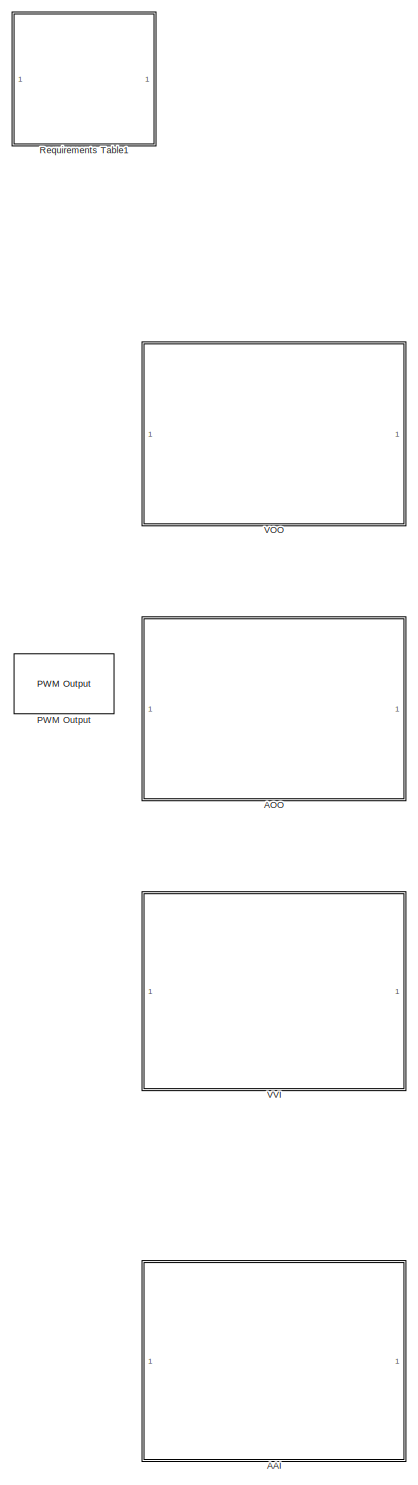
[diagram: root canvas - part 1/4, left side, full height]
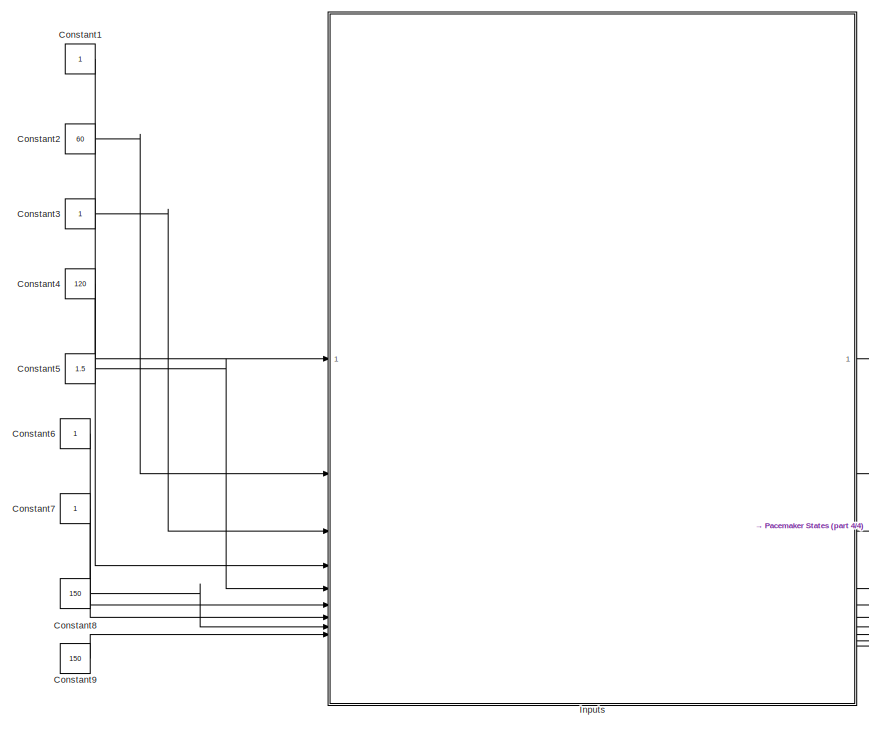
[diagram: root canvas - part 2/4, middle left region]
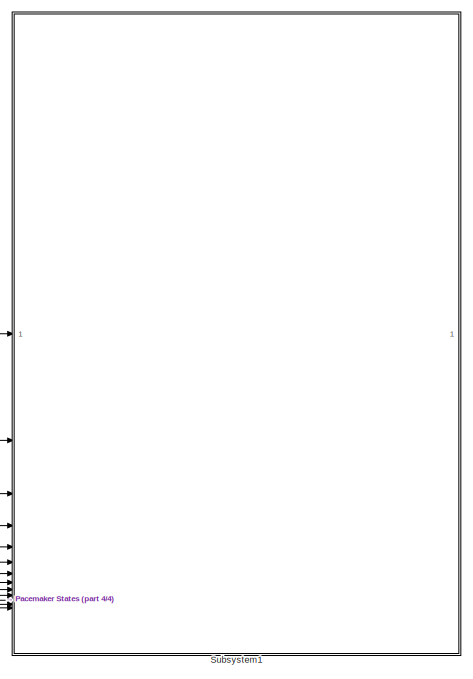
[diagram: root canvas - part 3/4, middle right region]
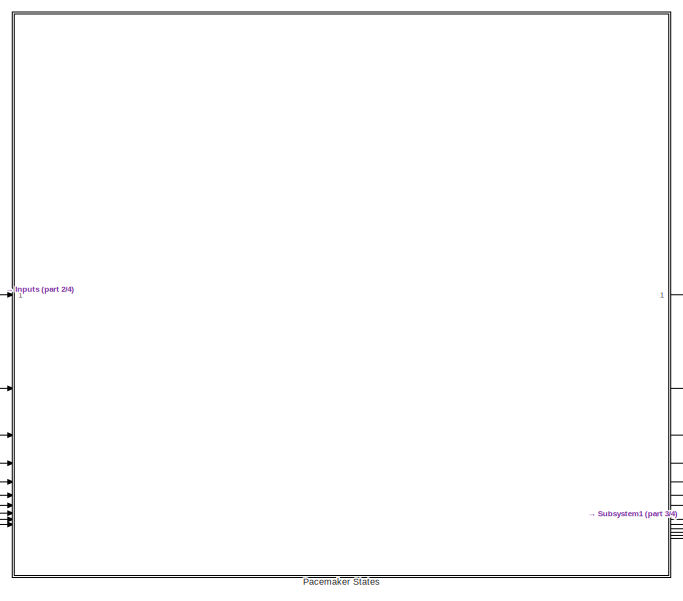
[diagram: root canvas - part 4/4, central region]
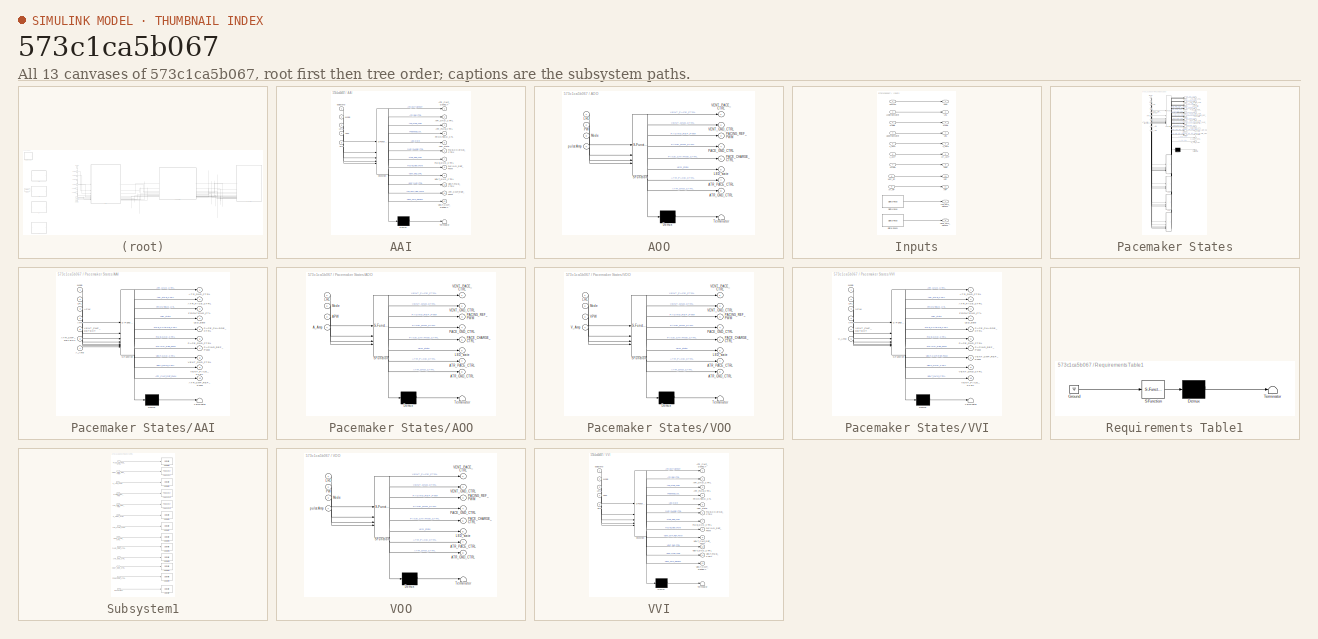
[diagram: thumbnail index - all 13 canvases of the model, root first then tree order]
MODEL slx_573c1ca5b067
KIND model
CONFIG AbsTol = auto
CONFIG EnableMultiTasking = on
CONFIG FixedStep = 1e-3
CONFIG MaxStep = auto
CONFIG MinStep = auto
CONFIG RelTol = 1e-3
CONFIG SampleTimeConstraint = Unconstrained
CONFIG SolverName = FixedStepAuto
CONFIG StartTime = 0.0
CONFIG StopTime = 10.0
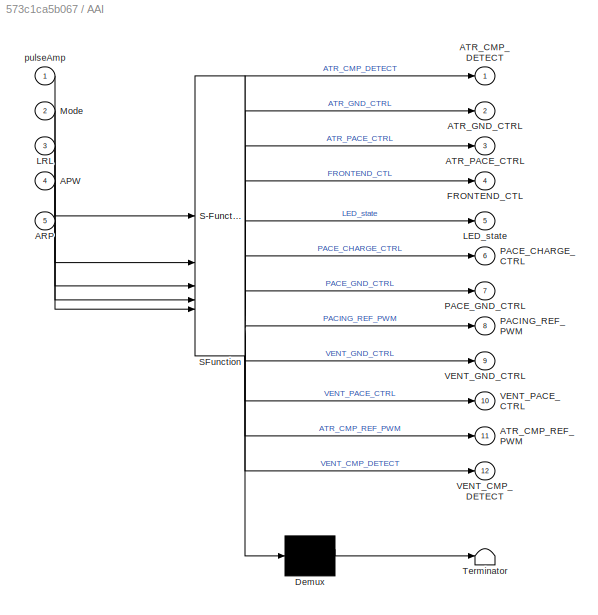
BLOCK [SubSystem] AAI
  ErrorFcn = Stateflow.Translate.translate
  PermitHierarchicalResolution = ExplicitOnly
  SFBlockType = Chart
  TreatAsAtomicUnit = on
BLOCK [Demux] AAI/ Demux 
  Outputs = 1
BLOCK [S-Function] AAI/ SFunction 
  EnableBusSupport = off
  FunctionName = sf_sfun
  PortCounts = [5 13]
  SFcnIsStateOwnerBlock = off
  SFunctionDeploymentMode = off
  Tag = Stateflow S-Function 5
BLOCK [Terminator] AAI/ Terminator 
BLOCK [Inport] AAI/APW
  Port = 4
BLOCK [Inport] AAI/ARP
  Port = 5
BLOCK [Outport] AAI/ATR_CMP_DETECT
BLOCK [Outport] AAI/ATR_CMP_REF_PWM
  Port = 11
BLOCK [Outport] AAI/ATR_GND_CTRL
  Port = 2
BLOCK [Outport] AAI/ATR_PACE_CTRL
  Port = 3
BLOCK [Outport] AAI/FRONTEND_CTL
  Port = 4
BLOCK [Outport] AAI/LED_state
  Port = 5
BLOCK [Inport] AAI/LRL
  Port = 3
BLOCK [Inport] AAI/Mode
  Port = 2
BLOCK [Outport] AAI/PACE_CHARGE_CTRL
  Port = 6
BLOCK [Outport] AAI/PACE_GND_CTRL
  Port = 7
BLOCK [Outport] AAI/PACING_REF_PWM
  Port = 8
BLOCK [Outport] AAI/VENT_CMP_DETECT
  Port = 12
BLOCK [Outport] AAI/VENT_GND_CTRL
  Port = 9
BLOCK [Outport] AAI/VENT_PACE_CTRL
  Port = 10
BLOCK [Inport] AAI/pulseAmp
BLOCK [SubSystem] AOO
  ErrorFcn = Stateflow.Translate.translate
  PermitHierarchicalResolution = ExplicitOnly
  PortSchema = {"entries":[{"content":{"sides":[{"content":{"connectorIds":["In3","In4","In1","In2"]},"type":"ConnectorPlacement.EquallySpacedRectSide","uuid":"4a9106b9-4977-4ad7-a664-79baeb9488d7"},{"content":{"connectorIds":["Out1","Out2","Out3","Out4","Out5","Out6","Out7","Out8"],"side":"RIGHT"},"type":"ConnectorPlacement.EquallySpacedRectSide","uuid":"b9887666-f10a-4603-9f8e-4ad73175cafe"},{"content":{"conne...<+307ch>
  SFBlockType = Chart
  TreatAsAtomicUnit = on
BLOCK [Demux] AOO/ Demux 
  Outputs = 1
BLOCK [S-Function] AOO/ SFunction 
  EnableBusSupport = off
  FunctionName = sf_sfun
  PortCounts = [4 9]
  SFcnIsStateOwnerBlock = off
  SFunctionDeploymentMode = off
  Tag = Stateflow S-Function 2
BLOCK [Terminator] AOO/ Terminator 
BLOCK [Outport] AOO/ATR_GND_CTRL
  Port = 8
BLOCK [Outport] AOO/ATR_PACE_CTRL
  Port = 7
BLOCK [Outport] AOO/LED_state
  Port = 6
BLOCK [Inport] AOO/LRL
BLOCK [Inport] AOO/Mode
  Port = 3
BLOCK [Outport] AOO/PACE_CHARGE_CTRL
  Port = 5
BLOCK [Outport] AOO/PACE_GND_CTRL
  Port = 4
BLOCK [Outport] AOO/PACING_REF_PWM
  Port = 3
BLOCK [Inport] AOO/PW
  Port = 2
BLOCK [Outport] AOO/VENT_GND_CTRL
  Port = 2
BLOCK [Outport] AOO/VENT_PACE_CTRL
BLOCK [Inport] AOO/pulseAmp
  Port = 4
BLOCK [Constant] Constant1
  OutDataTypeStr = int8
BLOCK [Constant] Constant2
  OutDataTypeStr = int8
  Value = 60
BLOCK [Constant] Constant3
  OutDataTypeStr = int8
BLOCK [Constant] Constant4
  OutDataTypeStr = int16
  Value = 120
BLOCK [Constant] Constant5
  OutDataTypeStr = double
  Value = 1.5
BLOCK [Constant] Constant6
  OutDataTypeStr = double
BLOCK [Constant] Constant7
  OutDataTypeStr = int8
BLOCK [Constant] Constant8
  OutDataTypeStr = int16
  Value = 150
BLOCK [Constant] Constant9
  OutDataTypeStr = int16
  Value = 150
BLOCK [SubSystem] Inputs
BLOCK [Outport] Inputs/APW
  OutDataTypeStr = int8
  Port = 8
BLOCK [Outport] Inputs/ARP
  OutDataTypeStr = int16
  Port = 11
BLOCK [Outport] Inputs/ATR_CMP_DETECT
  OutDataTypeStr = boolean
  Port = 7
BLOCK [Inport] Inputs/A_AMP
  OutDataTypeStr = double
  Port = 6
BLOCK [Inport] Inputs/AtrPW
  OutDataTypeStr = int8
  Port = 7
BLOCK [Outport] Inputs/Atr_AMP
  OutDataTypeStr = double
  Port = 6
BLOCK [Inport] Inputs/Atr_RP
  OutDataTypeStr = int16
  Port = 9
BLOCK [Reference] Inputs/Digital Read  REF=frdmk64flib/Digital Read
  SourceBlock = frdmk64flib/Digital Read
  SourceType = freedomk64f.DigitalRead
BLOCK [Reference] Inputs/Digital Read1  REF=frdmk64flib/Digital Read
  SourceBlock = frdmk64flib/Digital Read
  SourceType = freedomk64f.DigitalRead
BLOCK [Outport] Inputs/LRL
  OutDataTypeStr = int8
  Port = 2
BLOCK [Inport] Inputs/LowerRateLimit
  OutDataTypeStr = int8
  Port = 2
BLOCK [Inport] Inputs/MODE
  OutDataTypeStr = int8
  Port = 3
BLOCK [Outport] Inputs/Mode
  OutDataTypeStr = int8
  Port = 3
BLOCK [Outport] Inputs/URL
  OutDataTypeStr = int16
  Port = 4
BLOCK [Inport] Inputs/UpperRateLimit
  OutDataTypeStr = int16
  Port = 4
BLOCK [Outport] Inputs/VENT_CMP_DETECT
  OutDataTypeStr = boolean
  Port = 9
BLOCK [Outport] Inputs/VPW
  OutDataTypeStr = int8
BLOCK [Outport] Inputs/VRP
  OutDataTypeStr = int16
  Port = 10
BLOCK [Inport] Inputs/V_AMP
  OutDataTypeStr = double
  Port = 5
BLOCK [Outport] Inputs/V_Amp
  OutDataTypeStr = double
  Port = 5
BLOCK [Inport] Inputs/VentPW
  OutDataTypeStr = int8
BLOCK [Inport] Inputs/Vent_RP
  OutDataTypeStr = int16
  Port = 8
BLOCK [Reference] PWM Output  REF=frdmk64flib/PWM Output
  SourceBlock = frdmk64flib/PWM Output
  SourceType = freedomk64f.PWMOutput
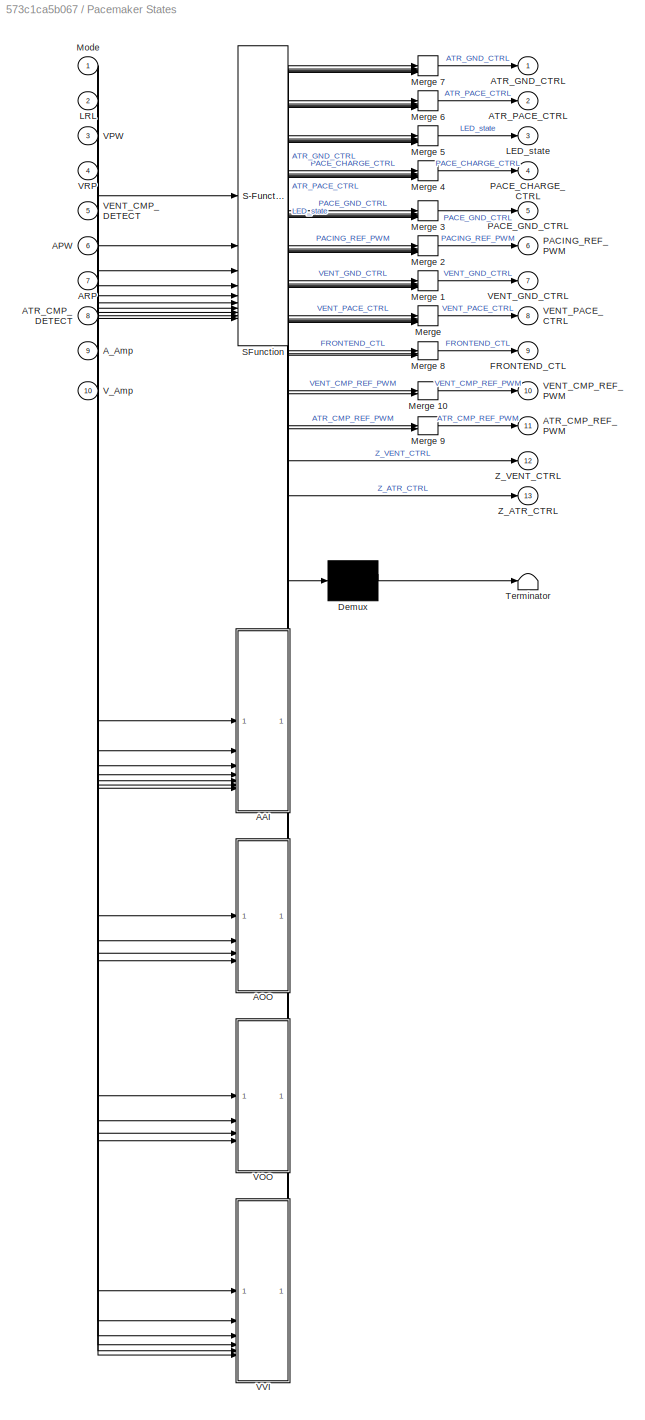
BLOCK [SubSystem] Pacemaker States
  ErrorFcn = Stateflow.Translate.translate
  PermitHierarchicalResolution = ExplicitOnly
  SFBlockType = Chart
  TreatAsAtomicUnit = on
BLOCK [Demux] Pacemaker States/ Demux 
  Outputs = 1
BLOCK [Merge] Pacemaker States/ Merge 
  Inputs = 5
BLOCK [Merge] Pacemaker States/ Merge 1
  Inputs = 5
BLOCK [Merge] Pacemaker States/ Merge 10
BLOCK [Merge] Pacemaker States/ Merge 2
  Inputs = 5
BLOCK [Merge] Pacemaker States/ Merge 3
  Inputs = 5
BLOCK [Merge] Pacemaker States/ Merge 4
  Inputs = 5
BLOCK [Merge] Pacemaker States/ Merge 5
  Inputs = 5
BLOCK [Merge] Pacemaker States/ Merge 6
  Inputs = 5
BLOCK [Merge] Pacemaker States/ Merge 7
  Inputs = 5
BLOCK [Merge] Pacemaker States/ Merge 8
  Inputs = 3
BLOCK [Merge] Pacemaker States/ Merge 9
BLOCK [S-Function] Pacemaker States/ SFunction 
  EnableBusSupport = off
  FunctionName = sf_sfun
  PortCounts = [10 14]
  SFcnIsStateOwnerBlock = off
  SFunctionDeploymentMode = off
  Tag = Stateflow S-Function 6
BLOCK [Terminator] Pacemaker States/ Terminator 
BLOCK [SubSystem] Pacemaker States/AAI
  CopyFcn = set_param(gcbh, 'DSMNames', '', 'DSMValues', '', 'CopyFcn', '')
  ErrorFcn = Stateflow.Translate.translate
  PermitHierarchicalResolution = ExplicitOnly
  SFBlockType = Chart
  TreatAsAtomicUnit = on
BLOCK [Demux] Pacemaker States/AAI/ Demux 
  Outputs = 1
BLOCK [S-Function] Pacemaker States/AAI/ SFunction 
  EnableBusSupport = off
  FunctionName = sf_sfun
  PortCounts = [7 11]
  SFcnIsStateOwnerBlock = off
  SFunctionDeploymentMode = off
  Tag = Stateflow S-Function 10
BLOCK [Terminator] Pacemaker States/AAI/ Terminator 
BLOCK [Inport] Pacemaker States/AAI/APW
  Port = 3
BLOCK [Inport] Pacemaker States/AAI/ARP
  Port = 4
BLOCK [Inport] Pacemaker States/AAI/ATR_CMP_DETECT
  Port = 6
BLOCK [Outport] Pacemaker States/AAI/ATR_CMP_REF_PWM
  Port = 10
BLOCK [Outport] Pacemaker States/AAI/ATR_GND_CTRL
BLOCK [Outport] Pacemaker States/AAI/ATR_PACE_CTRL
  Port = 2
BLOCK [Inport] Pacemaker States/AAI/A_Amp
  Port = 7
BLOCK [Outport] Pacemaker States/AAI/FRONTEND_CTL
  Port = 3
BLOCK [Outport] Pacemaker States/AAI/LED_state
  Port = 4
BLOCK [Inport] Pacemaker States/AAI/LRL
  Port = 2
BLOCK [Inport] Pacemaker States/AAI/Mode
BLOCK [Outport] Pacemaker States/AAI/PACE_CHARGE_CTRL
  Port = 5
BLOCK [Outport] Pacemaker States/AAI/PACE_GND_CTRL
  Port = 6
BLOCK [Outport] Pacemaker States/AAI/PACING_REF_PWM
  Port = 7
BLOCK [Inport] Pacemaker States/AAI/VENT_CMP_DETECT
  Port = 5
BLOCK [Outport] Pacemaker States/AAI/VENT_GND_CTRL
  Port = 8
BLOCK [Outport] Pacemaker States/AAI/VENT_PACE_CTRL
  Port = 9
BLOCK [SubSystem] Pacemaker States/AOO
  CopyFcn = set_param(gcbh, 'DSMNames', '', 'DSMValues', '', 'CopyFcn', '')
  ErrorFcn = Stateflow.Translate.translate
  PermitHierarchicalResolution = ExplicitOnly
  PortSchema = {"entries":[{"content":{"sides":[{"content":{"connectorIds":["In2","In3","In4","In1"]},"type":"ConnectorPlacement.EquallySpacedRectSide","uuid":"4a9106b9-4977-4ad7-a664-79baeb9488d7"},{"content":{"connectorIds":["Out1","Out2","Out3","Out4","Out5","Out6","Out7","Out8"],"side":"RIGHT"},"type":"ConnectorPlacement.EquallySpacedRectSide","uuid":"b9887666-f10a-4603-9f8e-4ad73175cafe"},{"content":{"conne...<+307ch>
  SFBlockType = Chart
  TreatAsAtomicUnit = on
BLOCK [Demux] Pacemaker States/AOO/ Demux 
  Outputs = 1
BLOCK [S-Function] Pacemaker States/AOO/ SFunction 
  EnableBusSupport = off
  FunctionName = sf_sfun
  PortCounts = [4 9]
  SFcnIsStateOwnerBlock = off
  SFunctionDeploymentMode = off
  Tag = Stateflow S-Function 8
BLOCK [Terminator] Pacemaker States/AOO/ Terminator 
BLOCK [Inport] Pacemaker States/AOO/APW
  Port = 3
BLOCK [Outport] Pacemaker States/AOO/ATR_GND_CTRL
  Port = 8
BLOCK [Outport] Pacemaker States/AOO/ATR_PACE_CTRL
  Port = 7
BLOCK [Inport] Pacemaker States/AOO/A_Amp
  Port = 4
BLOCK [Outport] Pacemaker States/AOO/LED_state
  Port = 6
BLOCK [Inport] Pacemaker States/AOO/LRL
BLOCK [Inport] Pacemaker States/AOO/Mode
  Port = 2
BLOCK [Outport] Pacemaker States/AOO/PACE_CHARGE_CTRL
  Port = 5
BLOCK [Outport] Pacemaker States/AOO/PACE_GND_CTRL
  Port = 4
BLOCK [Outport] Pacemaker States/AOO/PACING_REF_PWM
  Port = 3
BLOCK [Outport] Pacemaker States/AOO/VENT_GND_CTRL
  Port = 2
BLOCK [Outport] Pacemaker States/AOO/VENT_PACE_CTRL
BLOCK [Inport] Pacemaker States/APW
  Port = 6
BLOCK [Inport] Pacemaker States/ARP
  Port = 7
BLOCK [Inport] Pacemaker States/ATR_CMP_DETECT
  Port = 8
BLOCK [Outport] Pacemaker States/ATR_CMP_REF_PWM
  Port = 11
BLOCK [Outport] Pacemaker States/ATR_GND_CTRL
BLOCK [Outport] Pacemaker States/ATR_PACE_CTRL
  Port = 2
BLOCK [Inport] Pacemaker States/A_Amp
  Port = 9
BLOCK [Outport] Pacemaker States/FRONTEND_CTL
  Port = 9
BLOCK [Outport] Pacemaker States/LED_state
  Port = 3
BLOCK [Inport] Pacemaker States/LRL
  Port = 2
BLOCK [Inport] Pacemaker States/Mode
BLOCK [Outport] Pacemaker States/PACE_CHARGE_CTRL
  Port = 4
BLOCK [Outport] Pacemaker States/PACE_GND_CTRL
  Port = 5
BLOCK [Outport] Pacemaker States/PACING_REF_PWM
  Port = 6
BLOCK [Inport] Pacemaker States/VENT_CMP_DETECT
  Port = 5
BLOCK [Outport] Pacemaker States/VENT_CMP_REF_PWM
  Port = 10
BLOCK [Outport] Pacemaker States/VENT_GND_CTRL
  Port = 7
BLOCK [Outport] Pacemaker States/VENT_PACE_CTRL
  Port = 8
BLOCK [SubSystem] Pacemaker States/VOO
  CopyFcn = set_param(gcbh, 'DSMNames', '', 'DSMValues', '', 'CopyFcn', '')
  ErrorFcn = Stateflow.Translate.translate
  PermitHierarchicalResolution = ExplicitOnly
  SFBlockType = Chart
  TreatAsAtomicUnit = on
BLOCK [Demux] Pacemaker States/VOO/ Demux 
  Outputs = 1
BLOCK [S-Function] Pacemaker States/VOO/ SFunction 
  EnableBusSupport = off
  FunctionName = sf_sfun
  PortCounts = [4 9]
  SFcnIsStateOwnerBlock = off
  SFunctionDeploymentMode = off
  Tag = Stateflow S-Function 7
BLOCK [Terminator] Pacemaker States/VOO/ Terminator 
BLOCK [Outport] Pacemaker States/VOO/ATR_GND_CTRL
  Port = 8
BLOCK [Outport] Pacemaker States/VOO/ATR_PACE_CTRL
  Port = 7
BLOCK [Outport] Pacemaker States/VOO/LED_state
  Port = 6
BLOCK [Inport] Pacemaker States/VOO/LRL
BLOCK [Inport] Pacemaker States/VOO/Mode
  Port = 2
BLOCK [Outport] Pacemaker States/VOO/PACE_CHARGE_CTRL
  Port = 5
BLOCK [Outport] Pacemaker States/VOO/PACE_GND_CTRL
  Port = 4
BLOCK [Outport] Pacemaker States/VOO/PACING_REF_PWM
  Port = 3
BLOCK [Outport] Pacemaker States/VOO/VENT_GND_CTRL
  Port = 2
BLOCK [Outport] Pacemaker States/VOO/VENT_PACE_CTRL
BLOCK [Inport] Pacemaker States/VOO/VPW
  Port = 3
BLOCK [Inport] Pacemaker States/VOO/V_Amp
  Port = 4
BLOCK [Inport] Pacemaker States/VPW
  Port = 3
BLOCK [Inport] Pacemaker States/VRP
  Port = 4
BLOCK [SubSystem] Pacemaker States/VVI
  CopyFcn = set_param(gcbh, 'DSMNames', '', 'DSMValues', '', 'CopyFcn', '')
  ErrorFcn = Stateflow.Translate.translate
  PermitHierarchicalResolution = ExplicitOnly
  SFBlockType = Chart
  TreatAsAtomicUnit = on
BLOCK [Demux] Pacemaker States/VVI/ Demux 
  Outputs = 1
BLOCK [S-Function] Pacemaker States/VVI/ SFunction 
  EnableBusSupport = off
  FunctionName = sf_sfun
  PortCounts = [6 11]
  SFcnIsStateOwnerBlock = off
  SFunctionDeploymentMode = off
  Tag = Stateflow S-Function 9
BLOCK [Terminator] Pacemaker States/VVI/ Terminator 
BLOCK [Outport] Pacemaker States/VVI/ATR_GND_CTRL
BLOCK [Outport] Pacemaker States/VVI/ATR_PACE_CTRL
  Port = 2
BLOCK [Outport] Pacemaker States/VVI/FRONTEND_CTL
  Port = 3
BLOCK [Outport] Pacemaker States/VVI/LED_state
  Port = 4
BLOCK [Inport] Pacemaker States/VVI/LRL
  Port = 2
BLOCK [Inport] Pacemaker States/VVI/Mode
BLOCK [Outport] Pacemaker States/VVI/PACE_CHARGE_CTRL
  Port = 5
BLOCK [Outport] Pacemaker States/VVI/PACE_GND_CTRL
  Port = 6
BLOCK [Outport] Pacemaker States/VVI/PACING_REF_PWM
  Port = 7
BLOCK [Inport] Pacemaker States/VVI/VENT_CMP_DETECT
  Port = 5
BLOCK [Outport] Pacemaker States/VVI/VENT_CMP_REF_PWM
  Port = 8
BLOCK [Outport] Pacemaker States/VVI/VENT_GND_CTRL
  Port = 9
BLOCK [Outport] Pacemaker States/VVI/VENT_PACE_CTRL
  Port = 10
BLOCK [Inport] Pacemaker States/VVI/VPW
  Port = 3
BLOCK [Inport] Pacemaker States/VVI/VRP
  Port = 4
BLOCK [Inport] Pacemaker States/VVI/V_Amp
  Port = 6
BLOCK [Inport] Pacemaker States/V_Amp
  Port = 10
BLOCK [Outport] Pacemaker States/Z_ATR_CTRL
  Port = 13
BLOCK [Outport] Pacemaker States/Z_VENT_CTRL
  Port = 12
BLOCK [SubSystem] Requirements Table1
  ErrorFcn = Stateflow.Translate.translate
  PermitHierarchicalResolution = ExplicitOnly
  SFBlockType = Requirements Table
  TreatAsAtomicUnit = on
BLOCK [Demux] Requirements Table1/ Demux 
  Outputs = 1
BLOCK [Ground] Requirements Table1/ Ground 
BLOCK [S-Function] Requirements Table1/ SFunction 
  EnableBusSupport = off
  FunctionName = sf_sfun
  PortCounts = [1 1]
  SFcnIsStateOwnerBlock = off
  SFunctionDeploymentMode = off
  Tag = Stateflow S-Function 1
BLOCK [Terminator] Requirements Table1/ Terminator 
BLOCK [SubSystem] Subsystem1
BLOCK [Inport] Subsystem1/ATR_CMP_REF_PWM
  OutDataTypeStr = double
  Port = 5
BLOCK [Inport] Subsystem1/ATR_GND_CTRL
  OutDataTypeStr = boolean
  Port = 10
BLOCK [Inport] Subsystem1/ATR_PACE_CTRL
  OutDataTypeStr = boolean
  Port = 7
BLOCK [Inport] Subsystem1/Debug Light
  OutDataTypeStr = boolean
  Port = 13
BLOCK [Reference] Subsystem1/Digital Write  REF=frdmk64flib/Digital Write
  SourceBlock = frdmk64flib/Digital Write
  SourceType = freedomk64f.DigitalWrite
BLOCK [Reference] Subsystem1/Digital Write1  REF=frdmk64flib/Digital Write
  SourceBlock = frdmk64flib/Digital Write
  SourceType = freedomk64f.DigitalWrite
BLOCK [Reference] Subsystem1/Digital Write2  REF=frdmk64flib/Digital Write
  SourceBlock = frdmk64flib/Digital Write
  SourceType = freedomk64f.DigitalWrite
BLOCK [Reference] Subsystem1/Digital Write3  REF=frdmk64flib/Digital Write
  SourceBlock = frdmk64flib/Digital Write
  SourceType = freedomk64f.DigitalWrite
BLOCK [Reference] Subsystem1/Digital Write4  REF=frdmk64flib/Digital Write
  SourceBlock = frdmk64flib/Digital Write
  SourceType = freedomk64f.DigitalWrite
BLOCK [Reference] Subsystem1/Digital Write5  REF=frdmk64flib/Digital Write
  SourceBlock = frdmk64flib/Digital Write
  SourceType = freedomk64f.DigitalWrite
BLOCK [Reference] Subsystem1/Digital Write6  REF=frdmk64flib/Digital Write
  SourceBlock = frdmk64flib/Digital Write
  SourceType = freedomk64f.DigitalWrite
BLOCK [Reference] Subsystem1/Digital Write7  REF=frdmk64flib/Digital Write
  SourceBlock = frdmk64flib/Digital Write
  SourceType = freedomk64f.DigitalWrite
BLOCK [Reference] Subsystem1/Digital Write8  REF=frdmk64flib/Digital Write
  SourceBlock = frdmk64flib/Digital Write
  SourceType = freedomk64f.DigitalWrite
BLOCK [Reference] Subsystem1/Digital Write9  REF=frdmk64flib/Digital Write
  SourceBlock = frdmk64flib/Digital Write
  SourceType = freedomk64f.DigitalWrite
BLOCK [Inport] Subsystem1/FRONTEND_CTRL
  OutDataTypeStr = boolean
  Port = 12
BLOCK [Inport] Subsystem1/PACE_CHARGE_CTRL
  OutDataTypeStr = boolean
BLOCK [Inport] Subsystem1/PACE_GND_CTRL
  OutDataTypeStr = boolean
  Port = 9
BLOCK [Inport] Subsystem1/PACING_REF_PWM
  OutDataTypeStr = double
  Port = 4
BLOCK [Reference] Subsystem1/PWM Output  REF=frdmk64flib/PWM Output
  SourceBlock = frdmk64flib/PWM Output
  SourceType = freedomk64f.PWMOutput
BLOCK [Reference] Subsystem1/PWM Output1  REF=frdmk64flib/PWM Output
  SourceBlock = frdmk64flib/PWM Output
  SourceType = freedomk64f.PWMOutput
BLOCK [Reference] Subsystem1/PWM Output2  REF=frdmk64flib/PWM Output
  SourceBlock = frdmk64flib/PWM Output
  SourceType = freedomk64f.PWMOutput
BLOCK [Inport] Subsystem1/VENT_CMP_REF_PWM
  OutDataTypeStr = double
  Port = 2
BLOCK [Inport] Subsystem1/VENT_GND_CTRL
  OutDataTypeStr = boolean
  Port = 11
BLOCK [Inport] Subsystem1/VENT_PACE_CTRL
  OutDataTypeStr = boolean
  Port = 8
BLOCK [Inport] Subsystem1/Z_ATR_CTRL
  OutDataTypeStr = boolean
  Port = 3
BLOCK [Inport] Subsystem1/Z_VENT_CTRL
  OutDataTypeStr = boolean
  Port = 6
BLOCK [SubSystem] VOO
  ErrorFcn = Stateflow.Translate.translate
  PermitHierarchicalResolution = ExplicitOnly
  SFBlockType = Chart
  TreatAsAtomicUnit = on
BLOCK [Demux] VOO/ Demux 
  Outputs = 1
BLOCK [S-Function] VOO/ SFunction 
  EnableBusSupport = off
  FunctionName = sf_sfun
  PortCounts = [4 9]
  SFcnIsStateOwnerBlock = off
  SFunctionDeploymentMode = off
  Tag = Stateflow S-Function 3
BLOCK [Terminator] VOO/ Terminator 
BLOCK [Outport] VOO/ATR_GND_CTRL
  Port = 8
BLOCK [Outport] VOO/ATR_PACE_CTRL
  Port = 7
BLOCK [Outport] VOO/LED_state
  Port = 6
BLOCK [Inport] VOO/LRL
BLOCK [Inport] VOO/Mode
  Port = 3
BLOCK [Outport] VOO/PACE_CHARGE_CTRL
  Port = 5
BLOCK [Outport] VOO/PACE_GND_CTRL
  Port = 4
BLOCK [Outport] VOO/PACING_REF_PWM
  Port = 3
BLOCK [Inport] VOO/PW
  Port = 2
BLOCK [Outport] VOO/VENT_GND_CTRL
  Port = 2
BLOCK [Outport] VOO/VENT_PACE_CTRL
BLOCK [Inport] VOO/pulseAmp
  Port = 4
BLOCK [SubSystem] VVI
  ErrorFcn = Stateflow.Translate.translate
  PermitHierarchicalResolution = ExplicitOnly
  SFBlockType = Chart
  TreatAsAtomicUnit = on
BLOCK [Demux] VVI/ Demux 
  Outputs = 1
BLOCK [S-Function] VVI/ SFunction 
  EnableBusSupport = off
  FunctionName = sf_sfun
  PortCounts = [5 13]
  SFcnIsStateOwnerBlock = off
  SFunctionDeploymentMode = off
  Tag = Stateflow S-Function 4
BLOCK [Terminator] VVI/ Terminator 
BLOCK [Outport] VVI/ATR_CMP_DETECT
BLOCK [Outport] VVI/ATR_GND_CTRL
  Port = 2
BLOCK [Outport] VVI/ATR_PACE_CTRL
  Port = 3
BLOCK [Outport] VVI/FRONTEND_CTL
  Port = 4
BLOCK [Outport] VVI/LED_state
  Port = 5
BLOCK [Inport] VVI/LRL
  Port = 3
BLOCK [Inport] VVI/Mode
  Port = 2
BLOCK [Outport] VVI/PACE_CHARGE_CTRL
  Port = 6
BLOCK [Outport] VVI/PACE_GND_CTRL
  Port = 7
BLOCK [Outport] VVI/PACING_REF_PWM
  Port = 8
BLOCK [Outport] VVI/VENT_CMP_DETECT
  Port = 12
BLOCK [Outport] VVI/VENT_CMP_REF_PWM
  Port = 9
BLOCK [Outport] VVI/VENT_GND_CTRL
  Port = 10
BLOCK [Outport] VVI/VENT_PACE_CTRL
  Port = 11
BLOCK [Inport] VVI/VPW
  Port = 4
BLOCK [Inport] VVI/VRP
  Port = 5
BLOCK [Inport] VVI/pulseAmp
LINE Constant1:1 -> Inputs:1
LINE Constant2:1 -> Inputs:2
LINE Constant3:1 -> Inputs:3
LINE Constant4:1 -> Inputs:4
LINE Constant5:1 -> Inputs:5
LINE Constant6:1 -> Inputs:6
LINE Constant7:1 -> Inputs:7
LINE Constant8:1 -> Inputs:8
LINE Constant9:1 -> Inputs:9
LINE Inputs/A_AMP:1 -> Inputs/Atr_AMP:1
LINE Inputs/AtrPW:1 -> Inputs/APW:1
LINE Inputs/Atr_RP:1 -> Inputs/ARP:1
LINE Inputs/Digital Read1:1 -> Inputs/VENT_CMP_DETECT:1
LINE Inputs/Digital Read:1 -> Inputs/ATR_CMP_DETECT:1
LINE Inputs/LowerRateLimit:1 -> Inputs/LRL:1
LINE Inputs/MODE:1 -> Inputs/Mode:1
LINE Inputs/UpperRateLimit:1 -> Inputs/URL:1
LINE Inputs/V_AMP:1 -> Inputs/V_Amp:1
LINE Inputs/VentPW:1 -> Inputs/VPW:1
LINE Inputs/Vent_RP:1 -> Inputs/VRP:1
LINE Inputs:1 -> Pacemaker States:3
LINE Inputs:10 -> Pacemaker States:4
LINE Inputs:11 -> Pacemaker States:7
LINE Inputs:2 -> Pacemaker States:2
LINE Inputs:3 -> Pacemaker States:1
LINE Inputs:5 -> Pacemaker States:10
LINE Inputs:6 -> Pacemaker States:9
LINE Inputs:7 -> Pacemaker States:8
LINE Inputs:8 -> Pacemaker States:6
LINE Inputs:9 -> Pacemaker States:5
LINE Pacemaker States:1 -> Subsystem1:10
LINE Pacemaker States:10 -> Subsystem1:2
LINE Pacemaker States:11 -> Subsystem1:5
LINE Pacemaker States:12 -> Subsystem1:6
LINE Pacemaker States:13 -> Subsystem1:3
LINE Pacemaker States:2 -> Subsystem1:7
LINE Pacemaker States:3 -> Subsystem1:13
LINE Pacemaker States:4 -> Subsystem1:1
LINE Pacemaker States:5 -> Subsystem1:9
LINE Pacemaker States:6 -> Subsystem1:4
LINE Pacemaker States:7 -> Subsystem1:11
LINE Pacemaker States:8 -> Subsystem1:8
LINE Pacemaker States:9 -> Subsystem1:12
LINE Subsystem1/ATR_CMP_REF_PWM:1 -> Subsystem1/PWM Output2:1
LINE Subsystem1/ATR_GND_CTRL:1 -> Subsystem1/Digital Write8:1
LINE Subsystem1/ATR_PACE_CTRL:1 -> Subsystem1/Digital Write7:1
LINE Subsystem1/Debug Light:1 -> Subsystem1/Digital Write:1
LINE Subsystem1/FRONTEND_CTRL:1 -> Subsystem1/Digital Write9:1
LINE Subsystem1/PACE_CHARGE_CTRL:1 -> Subsystem1/Digital Write6:1
LINE Subsystem1/PACE_GND_CTRL:1 -> Subsystem1/Digital Write5:1
LINE Subsystem1/PACING_REF_PWM:1 -> Subsystem1/PWM Output1:1
LINE Subsystem1/VENT_CMP_REF_PWM:1 -> Subsystem1/PWM Output:1
LINE Subsystem1/VENT_GND_CTRL:1 -> Subsystem1/Digital Write3:1
LINE Subsystem1/VENT_PACE_CTRL:1 -> Subsystem1/Digital Write2:1
LINE Subsystem1/Z_ATR_CTRL:1 -> Subsystem1/Digital Write1:1
LINE Subsystem1/Z_VENT_CTRL:1 -> Subsystem1/Digital Write4:1
CHART Requirements Table1 states=0 transitions=28
CHART AOO states=2 transitions=3
  STATE_LABEL 'LED_on%State2(VOO)\n%Discharging C22\nPACE_CHARGE_CTRL = false;\nPACE_GND_CTRL = true;\nVENT_PACE_CTRL = false;\nATR_PACE_CTRL = true;\nVENT_GND_CTRL = true; %not sure\nATR_GND_CTRL = false;\n%LED STATE\nLED_state = true;'
  STATE_LABEL 'LED_off %State 1(VOO)\n%Charging C22\nMode = 2;\nPACING_REF_PWM = (pulseAmp / 5);\nPACE_CHARGE_CTRL = true;\nVENT_PACE_CTRL = false;\nATR_PACE_CTRL = false;\n%Discharging C21\nPACE_GND_CTRL = true;\nVENT_GND_CTRL = false;\nATR_GND_CTRL = true;\n%LED STATE\nLED_state = false;\n'
CHART VOO states=2 transitions=3
  STATE_LABEL 'LED_off %State 1(VOO)\nMode = 1;\nentry:\n%Charging C22\nPACING_REF_PWM = (pulseAmp / 5)*100;\nPACE_CHARGE_CTRL = true;\nVENT_PACE_CTRL = false;\nATR_PACE_CTRL = false;\n%Discharging C21\nPACE_GND_CTRL = true;\nVENT_GND_CTRL = true;\nATR_GND_CTRL = false;\n%LED STATE\nLED_state = false;\n'
  STATE_LABEL 'LED_on%State2(VOO)\nMode = 1;\nentry:\n%Discharging C22\nPACE_CHARGE_CTRL = false;\nPACE_GND_CTRL = true;\nVENT_PACE_CTRL = true;\nATR_PACE_CTRL = false;\nVENT_GND_CTRL = false;\nATR_GND_CTRL = true; %not sure\n%LED STATE\nLED_state = true;'
CHART VVI states=4 transitions=6
  STATE_LABEL 'SENSE_PULSE %Start sensing after VRP\nentry:\nFRONTEND_CTL = true;\n'
  STATE_LABEL ' SETUP_VENT_SENSE %State 1(VOO)\n\nMode=3;\nentry:\nFRONTEND_CTL = false;\nVENT_CMP_REF_PWM = 30;\nATR_CMP_DETECT = false;\n'
  STATE_LABEL 'VENT_PACE %Send a Pace to Ventricle\n%Charging C22\nentry:\nPACING_REF_PWM = (pulseAmp / 5);\nPACE_CHARGE_CTRL = true;\nVENT_PACE_CTRL = false;\nATR_PACE_CTRL = false;\n%Discharging C21\nPACE_GND_CTRL = true;\nVENT_GND_CTRL = true;\nATR_GND_CTRL = false;\n%LED STATE\nLED_state = false;'
  STATE_LABEL 'VENT_PACE_PT2 %Discharging C22\nentry:\nPACE_CHARGE_CTRL = false;\nPACE_GND_CTRL = true;\nVENT_PACE_CTRL = false;\nATR_PACE_CTRL = true;\nVENT_GND_CTRL = true; %not sure\nATR_GND_CTRL = false;\n%LED STATE\nLED_state = true;'
CHART AAI states=4 transitions=6
  STATE_LABEL 'SENSE_PULSE %Start sensing after ARP\nentry:\nFRONTEND_CTL = true;\n'
  STATE_LABEL ' SETUP_ATR_SENSE %State 1(VOO)\n\nMode=4;\nentry:\nFRONTEND_CTL = false;\nATR_CMP_REF_PWM = 30;\nVENT_CMP_DETECT = false;\n'
  STATE_LABEL 'ATR_PACE %Send a Pace to Atrium\n%Charging C22\nentry:\nPACING_REF_PWM = (pulseAmp / 5);\nPACE_CHARGE_CTRL = true;\nVENT_PACE_CTRL = false;\nATR_PACE_CTRL = false;\n%Discharging C21\nPACE_GND_CTRL = true;\nVENT_GND_CTRL = false;\nATR_GND_CTRL = true;\n%LED STATE\nLED_state = false;\n'
  STATE_LABEL 'ATR_PACE_PT2 %Discharging C22\nentry:\nPACE_CHARGE_CTRL = false;\nPACE_GND_CTRL = true;\nVENT_PACE_CTRL = false;\nATR_PACE_CTRL = true;\nVENT_GND_CTRL = true; %not sure\nATR_GND_CTRL = false;\n%LED STATE\nLED_state = true;'
CHART Pacemaker States states=5 transitions=9
  STATE_LABEL 'AOO'
  STATE_LABEL 'AAI'
  STATE_LABEL 'Start_State %Default Start State\n\nentry:\nVENT_PACE_CTRL = false;\nATR_PACE_CTRL = false;\nVENT_GND_CTRL = false;\nATR_GND_CTRL = false;\nPACE_GND_CTRL = false;\nPACE_CHARGE_CTRL = false;\nFRONTEND_CTL = false;\nVENT_CMP_REF_PWM = 0;\nPACING_REF_PWM = 0;\nATR_CMP_REF_PWM = 0;\nZ_ATR_CTRL = false;\nZ_VENT_CTRL = false;\n'
  STATE_LABEL 'VVI'
  STATE_LABEL 'VOO'
CHART Pacemaker States/VOO states=2 transitions=4
  STATE_LABEL 'LED_off %State 1(VOO)\nMode = 1;\nentry:\n%Charging C22\nPACING_REF_PWM = (V_Amp / 5)*100;\nPACE_CHARGE_CTRL = true;\nVENT_PACE_CTRL = false;\nATR_PACE_CTRL = false;\n%Discharging C21\nPACE_GND_CTRL = true;\nVENT_GND_CTRL = true;\nATR_GND_CTRL = false;\n%LED STATE\nLED_state = false;\n'
  STATE_LABEL 'LED_on%State2(VOO)\nMode = 1;\nentry:\n%Discharging C22\nPACE_CHARGE_CTRL = false;\nPACE_GND_CTRL = true;\nVENT_PACE_CTRL = true;\nATR_PACE_CTRL = false;\nVENT_GND_CTRL = false;\nATR_GND_CTRL = true; %not sure\n%LED STATE\nLED_state = true;'
CHART Pacemaker States/AOO states=2 transitions=4
  STATE_LABEL 'LED_on%State2(AOO)\n%Discharging C22\nPACE_CHARGE_CTRL = false;\nPACE_GND_CTRL = true;\nVENT_PACE_CTRL = false;\nATR_PACE_CTRL = true;\nVENT_GND_CTRL = true; %not sure\nATR_GND_CTRL = false;\n%LED STATE\nLED_state = true;'
  STATE_LABEL 'LED_off %State 1(AOO)\n%Charging C22\nMode = 2;\nPACING_REF_PWM = (A_Amp / 5);\nPACE_CHARGE_CTRL = true;\nVENT_PACE_CTRL = false;\nATR_PACE_CTRL = false;\n%Discharging C21\nPACE_GND_CTRL = true;\nVENT_GND_CTRL = false;\nATR_GND_CTRL = true;\n%LED STATE\nLED_state = false;\n'
CHART Pacemaker States/VVI states=4 transitions=7
  STATE_LABEL 'SENSE_PULSE %Start sensing after VRP\nentry:\nFRONTEND_CTL = true;\n'
  STATE_LABEL ' SETUP_VENT_SENSE %State 1(VOO)\n\nMode=3;\nentry:\nFRONTEND_CTL = false;\nVENT_CMP_REF_PWM = 30;\n'
  STATE_LABEL 'VENT_PACE %Send a Pace to Ventricle\n%Charging C22\nentry:\nPACING_REF_PWM = (V_Amp / 5);\nPACE_CHARGE_CTRL = true;\nVENT_PACE_CTRL = false;\nATR_PACE_CTRL = false;\n%Discharging C21\nPACE_GND_CTRL = true;\nVENT_GND_CTRL = true;\nATR_GND_CTRL = false;\n%LED STATE\nLED_state = false;'
  STATE_LABEL 'VENT_PACE_PT2 %Discharging C22\nentry:\nPACE_CHARGE_CTRL = false;\nPACE_GND_CTRL = true;\nVENT_PACE_CTRL = false;\nATR_PACE_CTRL = true;\nVENT_GND_CTRL = true; %not sure\nATR_GND_CTRL = false;\n%LED STATE\nLED_state = true;'
CHART Pacemaker States/AAI states=4 transitions=7
  STATE_LABEL 'SENSE_PULSE %Start sensing after ARP\nentry:\nFRONTEND_CTL = true;\n'
  STATE_LABEL ' SETUP_ATR_SENSE %State 1(VOO)\n\nMode=4;\nentry:\nFRONTEND_CTL = false;\nATR_CMP_REF_PWM = 30;\nVENT_CMP_DETECT = false;\n'
  STATE_LABEL 'ATR_PACE %Send a Pace to Atrium\n%Charging C22\nentry:\nPACING_REF_PWM = (A_Amp / 5);\nPACE_CHARGE_CTRL = true;\nVENT_PACE_CTRL = false;\nATR_PACE_CTRL = false;\n%Discharging C21\nPACE_GND_CTRL = true;\nVENT_GND_CTRL = false;\nATR_GND_CTRL = true;\n%LED STATE\nLED_state = false;\n'
  STATE_LABEL 'ATR_PACE_PT2 %Discharging C22\nentry:\nPACE_CHARGE_CTRL = false;\nPACE_GND_CTRL = true;\nVENT_PACE_CTRL = false;\nATR_PACE_CTRL = true;\nVENT_GND_CTRL = true; %not sure\nATR_GND_CTRL = false;\n%LED STATE\nLED_state = true;'
CHART  states=0 transitions=0
CHART  states=0 transitions=0
CHART  states=0 transitions=0
CHART  states=0 transitions=0
CHART  states=0 transitions=0
CHART  states=0 transitions=0
CHART  states=0 transitions=0
CHART  states=0 transitions=0
CHART  states=0 transitions=0
CHART  states=0 transitions=0
